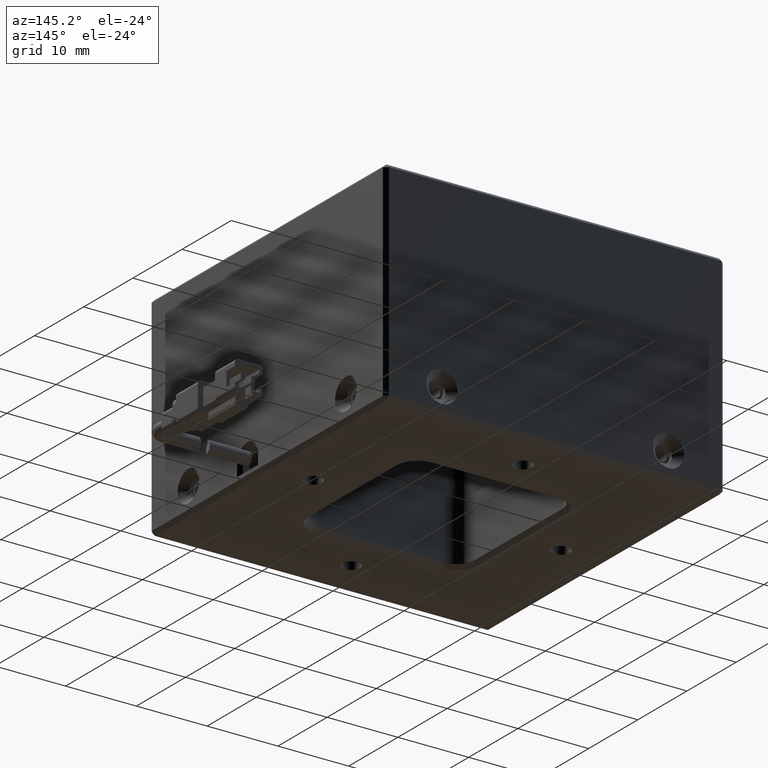
[diagram: clean part render]
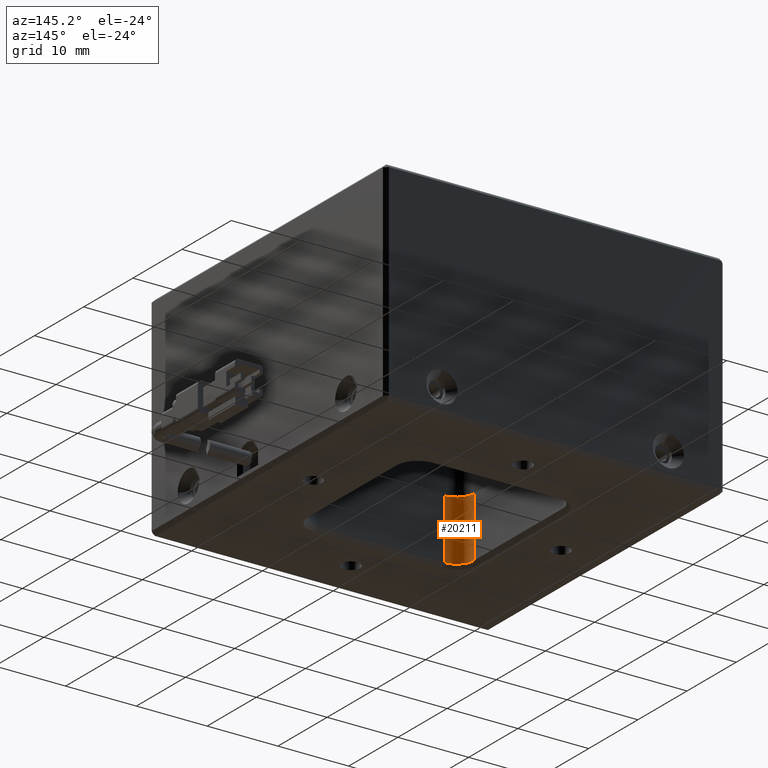
[diagram: same view with one face highlighted and labeled with its STEP entity id]
A machine part, auxiliary view. The second image highlights one B-rep face of the part: STEP entity #20211.
In plain terms, the highlighted cylindrical surface (edge-blend (fillet) strip) has radius 2.5 mm, axis along (0, 0, -1).
Its self-contained STEP definition (entity closure, byte-faithful):
#71 = VECTOR ( 'NONE', #22390, 1000.000000000000000 ) ;
#330 = CIRCLE ( 'NONE', #7944, 2.500000000012277300 ) ;
#591 = CARTESIAN_POINT ( 'NONE',  ( -28.81427458548067100, -10.09390667123334300, 0.5000000000623620000 ) ) ;
#2559 = DIRECTION ( 'NONE',  ( -0.0000000000000000000, -0.0000000000000000000, -1.000000000000000000 ) ) ;
#3106 = DIRECTION ( 'NONE',  ( 0.0000000000000000000, 0.0000000000000000000, -1.000000000000000000 ) ) ;
#3305 = EDGE_CURVE ( 'NONE', #17162, #23400, #330, .T. ) ;
#5097 = CIRCLE ( 'NONE', #23664, 2.500000000000002200 ) ;
#5931 = ORIENTED_EDGE ( 'NONE', *, *, #24916, .F. ) ;
#6337 = VERTEX_POINT ( 'NONE', #16421 ) ;
#6360 = DIRECTION ( 'NONE',  ( -0.0000000000000000000, -0.0000000000000000000, 1.000000000000000000 ) ) ;
#6855 = DIRECTION ( 'NONE',  ( 0.0000000000000000000, 0.0000000000000000000, -1.000000000000000000 ) ) ;
#7944 = AXIS2_PLACEMENT_3D ( 'NONE', #16187, #2559, #18482 ) ;
#12402 = EDGE_CURVE ( 'NONE', #17162, #15945, #26278, .T. ) ;
#12608 = FACE_OUTER_BOUND ( 'NONE', #16013, .T. ) ;
#13040 = ORIENTED_EDGE ( 'NONE', *, *, #3305, .T. ) ;
#13626 = CARTESIAN_POINT ( 'NONE',  ( -28.81427458548067100, -7.593906671255627600, -18.99999999999272400 ) ) ;
#13687 = CARTESIAN_POINT ( 'NONE',  ( -31.31427458548374100, -7.593906671255620500, 0.5000000000185463900 ) ) ;
#15945 = VERTEX_POINT ( 'NONE', #25404 ) ;
#16013 = EDGE_LOOP ( 'NONE', ( #13040, #28721, #5931, #27646 ) ) ;
#16030 = DIRECTION ( 'NONE',  ( -1.000000000000000000, 0.0000000000000000000, 0.0000000000000000000 ) ) ;
#16031 = AXIS2_PLACEMENT_3D ( 'NONE', #13626, #6855, #16030 ) ;
#16187 = CARTESIAN_POINT ( 'NONE',  ( -28.81427458548067100, -7.593906671255627600, 0.5000000000522953900 ) ) ;
#16421 = CARTESIAN_POINT ( 'NONE',  ( -31.31427458548067500, -7.593906671255627600, 9.000000000007279500 ) ) ;
#16754 = CARTESIAN_POINT ( 'NONE',  ( -28.81427458548067100, -7.593906671255627600, 9.000000000007279500 ) ) ;
#17162 = VERTEX_POINT ( 'NONE', #591 ) ;
#17703 = CARTESIAN_POINT ( 'NONE',  ( -28.81427458548067100, -10.09390667125562800, -18.99999999999272400 ) ) ;
#18482 = DIRECTION ( 'NONE',  ( -1.000000000000000000, 0.0000000000000000000, 0.0000000000000000000 ) ) ;
#19020 = DIRECTION ( 'NONE',  ( -1.000000000000000000, 0.0000000000000000000, 0.0000000000000000000 ) ) ;
#20211 = ADVANCED_FACE ( 'NONE', ( #12608 ), #27958, .F. ) ;
#20267 = VECTOR ( 'NONE', #6360, 1000.000000000000000 ) ;
#22390 = DIRECTION ( 'NONE',  ( 0.0000000000000000000, 0.0000000000000000000, 1.000000000000000000 ) ) ;
#23400 = VERTEX_POINT ( 'NONE', #13687 ) ;
#23664 = AXIS2_PLACEMENT_3D ( 'NONE', #16754, #3106, #19020 ) ;
#24261 = LINE ( 'NONE', #29131, #71 ) ;
#24916 = EDGE_CURVE ( 'NONE', #15945, #6337, #5097, .T. ) ;
#25177 = EDGE_CURVE ( 'NONE', #23400, #6337, #24261, .T. ) ;
#25404 = CARTESIAN_POINT ( 'NONE',  ( -28.81427458548067100, -10.09390667125562800, 9.000000000007279500 ) ) ;
#26278 = LINE ( 'NONE', #17703, #20267 ) ;
#27646 = ORIENTED_EDGE ( 'NONE', *, *, #12402, .F. ) ;
#27958 = CYLINDRICAL_SURFACE ( 'NONE', #16031, 2.500000000000002200 ) ;
#28721 = ORIENTED_EDGE ( 'NONE', *, *, #25177, .T. ) ;
#29131 = CARTESIAN_POINT ( 'NONE',  ( -31.31427458548067500, -7.593906671255627600, -18.99999999999272400 ) ) ;